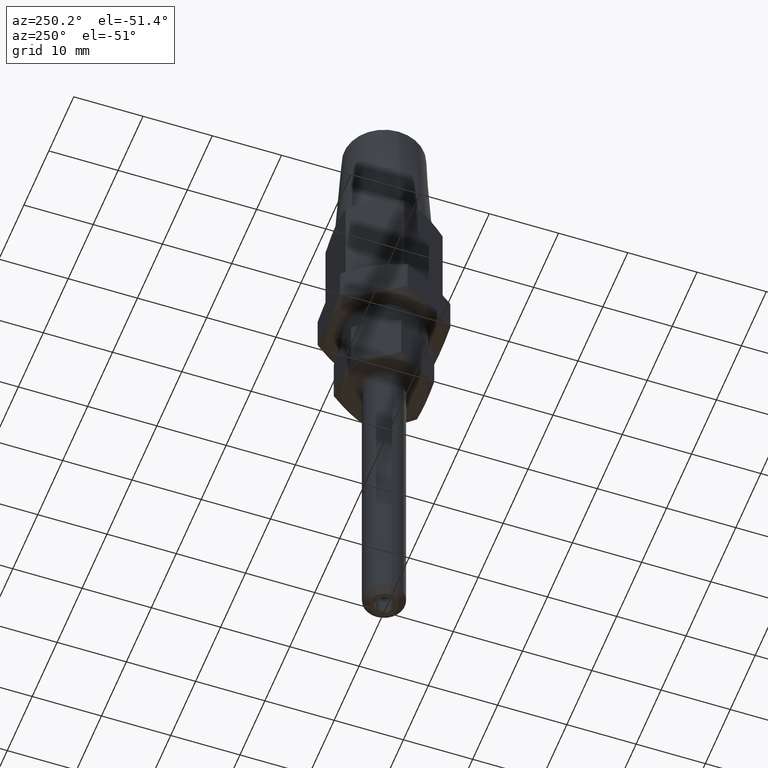
[diagram: clean part render]
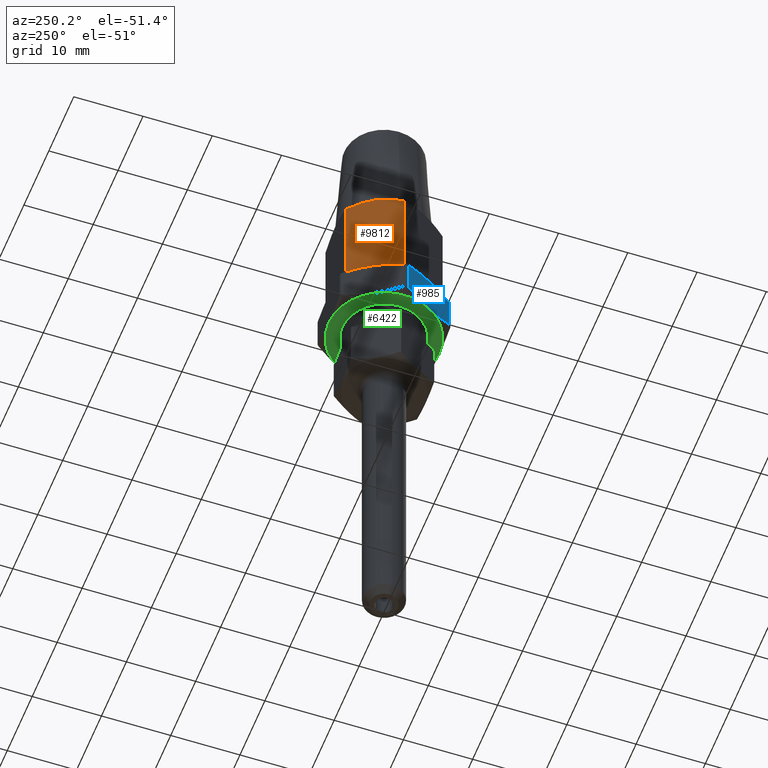
[diagram: same view with three faces highlighted in distinct colors, each labeled with its STEP entity id]
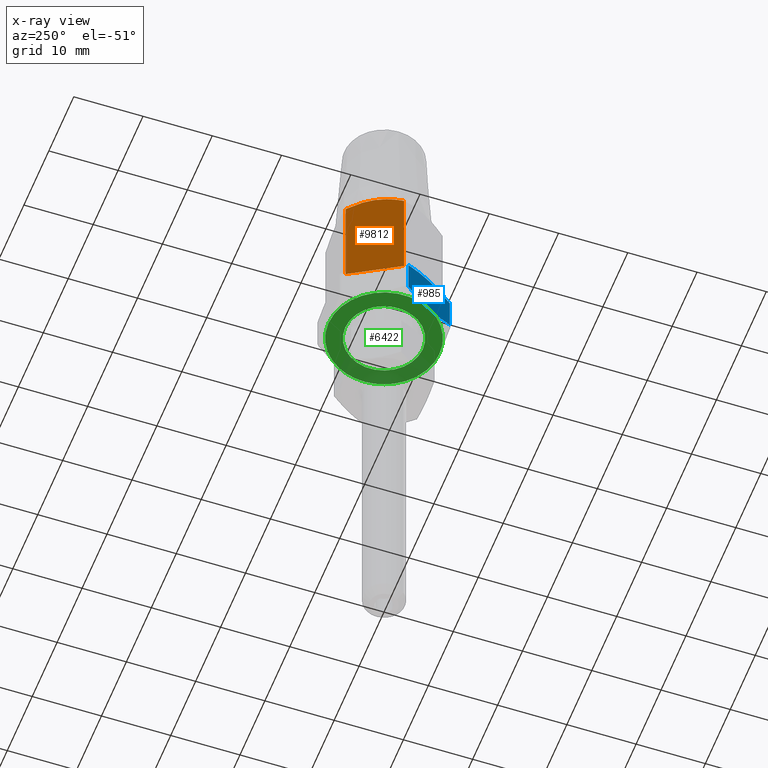
[diagram: x-ray of the same camera — body ghosted, the three highlighted faces saturated]
A machine part, auxiliary view with three faces highlighted in distinct colors.
The next image is the same camera in x-ray (body ghosted, the three faces saturated) — at least one of them is partly hidden behind the body in this view.
Their STEP definitions:

[orange] entity #9812 — the highlighted planar face has unit normal (0.866, -0.5, 0).
#269 = LINE ( 'NONE', #10465, #5204 ) ;
#563 = CARTESIAN_POINT ( 'NONE',  ( -4.357220654578270600, 6.453072446481927600, 14.48286500159613700 ) ) ;
#621 = EDGE_LOOP ( 'NONE', ( #12077, #9252, #6656, #3625 ) ) ;
#1512 = LINE ( 'NONE', #13819, #10100 ) ;
#1807 = PLANE ( 'NONE',  #12595 ) ;
#2319 = VERTEX_POINT ( 'NONE', #6011 ) ;
#3625 = ORIENTED_EDGE ( 'NONE', *, *, #11489, .F. ) ;
#4703 = CARTESIAN_POINT ( 'NONE',  ( -7.438231708962885800, 1.116604761606411200, 14.75707473685712200 ) ) ;
#4764 = CARTESIAN_POINT ( 'NONE',  ( -5.699381388933853800, 4.128381862654099300, 15.22088044662089800 ) ) ;
#5204 = VECTOR ( 'NONE', #13114, 1000.000000000000100 ) ;
#5542 = VERTEX_POINT ( 'NONE', #12862 ) ;
#6011 = CARTESIAN_POINT ( 'NONE',  ( -8.082903768654762900, 1.537748083177683700E-016, 14.16709623134525100 ) ) ;
#6656 = ORIENTED_EDGE ( 'NONE', *, *, #16388, .T. ) ;
#7008 = DIRECTION ( 'NONE',  ( -0.0000000000000000000, -0.0000000000000000000, -1.000000000000000000 ) ) ;
#7254 = CARTESIAN_POINT ( 'NONE',  ( -5.351911424995836200, 4.730217494298867300, 15.11557990305788800 ) ) ;
#7938 = CARTESIAN_POINT ( 'NONE',  ( -8.082903768654762900, 6.998943670725841100E-018, 0.0000000000000000000 ) ) ;
#8629 = DIRECTION ( 'NONE',  ( 0.8660254037844387100, -0.4999999999999999400, 0.0000000000000000000 ) ) ;
#8718 = FACE_OUTER_BOUND ( 'NONE', #621, .T. ) ;
#8821 = CARTESIAN_POINT ( 'NONE',  ( -4.041451884327385000, 6.999999999999999100, 14.16709623134525100 ) ) ;
#9167 = LINE ( 'NONE', #17466, #16003 ) ;
#9252 = ORIENTED_EDGE ( 'NONE', *, *, #9663, .T. ) ;
#9524 = EDGE_CURVE ( 'NONE', #5542, #2319, #10781, .T. ) ;
#9663 = EDGE_CURVE ( 'NONE', #5542, #11864, #9167, .T. ) ;
#9812 = ADVANCED_FACE ( 'NONE', ( #8718 ), #1807, .F. ) ;
#9961 = CARTESIAN_POINT ( 'NONE',  ( -6.407546963995874200, 2.901803106475448100, 15.25148396273105800 ) ) ;
#10100 = VECTOR ( 'NONE', #7008, 1000.000000000000000 ) ;
#10140 = CARTESIAN_POINT ( 'NONE',  ( -4.680111991988589200, 5.893808244763385500, 14.75134614935850900 ) ) ;
#10465 = CARTESIAN_POINT ( 'NONE',  ( -4.041451884327385000, 6.999999999999999100, 0.0000000000000000000 ) ) ;
#10781 = B_SPLINE_CURVE_WITH_KNOTS ( 'NONE', 3,
 ( #8821, #563, #10140, #11528, #7254, #4764, #12923, #9961, #16822, #4703, #17003, #12796 ),
 .UNSPECIFIED., .F., .F.,
 ( 4, 2, 2, 2, 2, 4 ),
 ( 2.544316211734210900E-007, 0.002087583538114676100, 0.003131248091361426800, 0.004174912644608177000, 0.006262241751101677400, 0.008349570857595176000 ),
 .UNSPECIFIED. ) ;
#11489 = EDGE_CURVE ( 'NONE', #2319, #14785, #1512, .T. ) ;
#11528 = CARTESIAN_POINT ( 'NONE',  ( -5.181773201775139400, 5.024905541226609700, 15.03905029590963900 ) ) ;
#11864 = VERTEX_POINT ( 'NONE', #14271 ) ;
#12077 = ORIENTED_EDGE ( 'NONE', *, *, #9524, .F. ) ;
#12490 = DIRECTION ( 'NONE',  ( -0.0000000000000000000, -0.0000000000000000000, -1.000000000000000000 ) ) ;
#12595 = AXIS2_PLACEMENT_3D ( 'NONE', #15558, #8629, #12787 ) ;
#12787 = DIRECTION ( 'NONE',  ( 0.4999999999999999400, 0.8660254037844387100, 0.0000000000000000000 ) ) ;
#12796 = CARTESIAN_POINT ( 'NONE',  ( -8.082903768654762900, 1.537748083177683700E-016, 14.16709623134525100 ) ) ;
#12862 = CARTESIAN_POINT ( 'NONE',  ( -4.041451884327385000, 6.999999999999999100, 14.16709623134525100 ) ) ;
#12923 = CARTESIAN_POINT ( 'NONE',  ( -5.878334458841439200, 3.818426053403735300, 15.24923430079596200 ) ) ;
#13114 = DIRECTION ( 'NONE',  ( -0.4999999999999998900, -0.8660254037844387100, 0.0000000000000000000 ) ) ;
#13819 = CARTESIAN_POINT ( 'NONE',  ( -8.082903768654762900, 6.998943670725841100E-018, 15.50000000000000000 ) ) ;
#14271 = CARTESIAN_POINT ( 'NONE',  ( -4.041451884327385000, 6.999999999999999100, 0.0000000000000000000 ) ) ;
#14785 = VERTEX_POINT ( 'NONE', #7938 ) ;
#15558 = CARTESIAN_POINT ( 'NONE',  ( -4.041451884327385000, 6.999999999999999100, 15.50000000000000000 ) ) ;
#16003 = VECTOR ( 'NONE', #12490, 1000.000000000000000 ) ;
#16388 = EDGE_CURVE ( 'NONE', #11864, #14785, #269, .T. ) ;
#16822 = CARTESIAN_POINT ( 'NONE',  ( -6.754331197248241400, 2.301155195218526700, 15.14464026218349000 ) ) ;
#17003 = CARTESIAN_POINT ( 'NONE',  ( -7.765275520783808900, 0.5501482632315750600, 14.48472447921632700 ) ) ;
#17466 = CARTESIAN_POINT ( 'NONE',  ( -4.041451884327385000, 6.999999999999999100, 15.50000000000000000 ) ) ;

[blue] entity #985 — the highlighted planar face has unit normal (0.866, 0.5, 0).
#79 = CARTESIAN_POINT ( 'NONE',  ( -9.093266739736604300, 3.000000000000000000, -0.2500000000000019400 ) ) ;
#359 = AXIS2_PLACEMENT_3D ( 'NONE', #10997, #2796, #12370 ) ;
#438 = VERTEX_POINT ( 'NONE', #15255 ) ;
#981 = LINE ( 'NONE', #79, #9977 ) ;
#985 = ADVANCED_FACE ( 'NONE', ( #5104 ), #9601, .F. ) ;
#1037 = CARTESIAN_POINT ( 'NONE',  ( -4.763139720814413300, 3.000000000000000000, -7.749999999999998200 ) ) ;
#1248 = EDGE_CURVE ( 'NONE', #10501, #3692, #10145, .T. ) ;
#1414 = CARTESIAN_POINT ( 'NONE',  ( -6.560346905327028500, 2.985208350672251800, -4.637145844696337200 ) ) ;
#1534 = CARTESIAN_POINT ( 'NONE',  ( -4.763139720813718700, -2.366818401320392300, -7.750000000001200800 ) ) ;
#1576 = ORIENTED_EDGE ( 'NONE', *, *, #2968, .T. ) ;
#2226 = EDGE_LOOP ( 'NONE', ( #11247, #4898, #10258, #11302, #5936, #1576 ) ) ;
#2575 = EDGE_CURVE ( 'NONE', #3692, #17617, #981, .T. ) ;
#2611 = CARTESIAN_POINT ( 'NONE',  ( -9.093266739737298800, 2.366818401320391900, -0.2499999999987993500 ) ) ;
#2702 = CARTESIAN_POINT ( 'NONE',  ( -5.116728026455192000, 2.561168110950621000, -7.137567089667976800 ) ) ;
#2796 = DIRECTION ( 'NONE',  ( 0.8660254037844387100, -0.0000000000000000000, 0.5000000000000001100 ) ) ;
#2874 = CARTESIAN_POINT ( 'NONE',  ( -5.117570874825708500, -2.561631382313039200, -7.136107233467162900 ) ) ;
#2968 = EDGE_CURVE ( 'NONE', #438, #10501, #8912, .T. ) ;
#3152 = CARTESIAN_POINT ( 'NONE',  ( -6.928203230275509700, -3.000000000000000900, -4.000000000000000000 ) ) ;
#3371 = VECTOR ( 'NONE', #9306, 1000.000000000000000 ) ;
#3591 = EDGE_CURVE ( 'NONE', #17617, #16865, #14743, .T. ) ;
#3692 = VERTEX_POINT ( 'NONE', #13994 ) ;
#4263 = CARTESIAN_POINT ( 'NONE',  ( -6.928203230275509700, 3.000000000000000900, -4.000000000000000000 ) ) ;
#4266 = CARTESIAN_POINT ( 'NONE',  ( -6.744709577508775300, 3.000000000000006200, -4.317820329458386100 ) ) ;
#4426 = CARTESIAN_POINT ( 'NONE',  ( -6.928203230275509700, -3.000000000000000900, -4.000000000000000000 ) ) ;
#4898 = ORIENTED_EDGE ( 'NONE', *, *, #2575, .T. ) ;
#5104 = FACE_OUTER_BOUND ( 'NONE', #2226, .T. ) ;
#5451 = CARTESIAN_POINT ( 'NONE',  ( -6.014103901768241800, 2.885186752460023200, -5.583266480139180000 ) ) ;
#5668 = CARTESIAN_POINT ( 'NONE',  ( -5.474555511747933400, -2.720893097496192700, -6.517791704796345600 ) ) ;
#5682 = DIRECTION ( 'NONE',  ( -0.0000000000000000000, 1.000000000000000000, -0.0000000000000000000 ) ) ;
#5735 = EDGE_CURVE ( 'NONE', #11120, #438, #6962, .T. ) ;
#5936 = ORIENTED_EDGE ( 'NONE', *, *, #5735, .T. ) ;
#6922 = CARTESIAN_POINT ( 'NONE',  ( -4.763139720814414200, 2.366818401320774300, -7.749999999999996400 ) ) ;
#6962 = LINE ( 'NONE', #1037, #3371 ) ;
#6968 = CARTESIAN_POINT ( 'NONE',  ( -6.559779561332480700, -3.000000000000006200, -4.638128513320261900 ) ) ;
#7982 = CARTESIAN_POINT ( 'NONE',  ( -7.660987509252689300, -2.927775518044769800, -2.730780397823792800 ) ) ;
#8086 = CARTESIAN_POINT ( 'NONE',  ( -7.660768647960194000, 2.940384295252646200, -2.731159476702206500 ) ) ;
#8190 = CARTESIAN_POINT ( 'NONE',  ( -6.195418951298327300, 2.927775518044770200, -5.269219602176205400 ) ) ;
#8626 = B_SPLINE_CURVE_WITH_KNOTS ( 'NONE', 3,
 ( #15138, #4266, #1414, #8190, #5451, #9695, #2702, #6922 ),
 .UNSPECIFIED., .F., .F.,
 ( 4, 2, 2, 4 ),
 ( 0.004673709593152152200, 0.005763484876759233900, 0.006853260160366316500, 0.009032810727580479000 ),
 .UNSPECIFIED. ) ;
#8912 = B_SPLINE_CURVE_WITH_KNOTS ( 'NONE', 3,
 ( #1534, #2874, #5668, #9689, #6968, #4426 ),
 .UNSPECIFIED., .F., .F.,
 ( 4, 2, 4 ),
 ( 0.0002975472326987025900, 0.002485628412925428400, 0.004673709593152154000 ),
 .UNSPECIFIED. ) ;
#9269 = CARTESIAN_POINT ( 'NONE',  ( -7.842302558782777500, -2.885186752460022800, -2.416733519860816900 ) ) ;
#9306 = DIRECTION ( 'NONE',  ( 0.0000000000000000000, -1.000000000000000000, 0.0000000000000000000 ) ) ;
#9601 = PLANE ( 'NONE',  #359 ) ;
#9689 = CARTESIAN_POINT ( 'NONE',  ( -6.195637812590822700, -2.940384295252646200, -5.268840523297790800 ) ) ;
#9695 = CARTESIAN_POINT ( 'NONE',  ( -5.473227440624929100, 2.720368592424070800, -6.520091991457449300 ) ) ;
#9977 = VECTOR ( 'NONE', #5682, 1000.000000000000000 ) ;
#10145 = B_SPLINE_CURVE_WITH_KNOTS ( 'NONE', 3,
 ( #3152, #13643, #14832, #7982, #9269, #16308, #17664, #16079 ),
 .UNSPECIFIED., .F., .F.,
 ( 4, 2, 2, 4 ),
 ( 0.004673709593152154000, 0.005763484876759235700, 0.006853260160366318200, 0.009032810727580484200 ),
 .UNSPECIFIED. ) ;
#10155 = CARTESIAN_POINT ( 'NONE',  ( -6.928203230275509700, -3.000000000000000900, -4.000000000000000000 ) ) ;
#10258 = ORIENTED_EDGE ( 'NONE', *, *, #3591, .T. ) ;
#10501 = VERTEX_POINT ( 'NONE', #10155 ) ;
#10997 = CARTESIAN_POINT ( 'NONE',  ( -4.618802153517006700, 3.000000000000000000, -7.999999999999998200 ) ) ;
#11120 = VERTEX_POINT ( 'NONE', #16666 ) ;
#11247 = ORIENTED_EDGE ( 'NONE', *, *, #1248, .T. ) ;
#11302 = ORIENTED_EDGE ( 'NONE', *, *, #14420, .T. ) ;
#12256 = CARTESIAN_POINT ( 'NONE',  ( -6.928203230275509700, 3.000000000000000900, -4.000000000000000000 ) ) ;
#12370 = DIRECTION ( 'NONE',  ( 0.5000000000000000000, 0.0000000000000000000, -0.8660254037844386000 ) ) ;
#13643 = CARTESIAN_POINT ( 'NONE',  ( -7.111696883042241300, -3.000000000000006700, -3.682179670541614800 ) ) ;
#13994 = CARTESIAN_POINT ( 'NONE',  ( -9.093266739736604300, -2.366818401320773800, -0.2500000000000016700 ) ) ;
#14420 = EDGE_CURVE ( 'NONE', #16865, #11120, #8626, .T. ) ;
#14743 = B_SPLINE_CURVE_WITH_KNOTS ( 'NONE', 3,
 ( #2611, #14920, #16299, #8086, #17654, #12256 ),
 .UNSPECIFIED., .F., .F.,
 ( 4, 2, 4 ),
 ( 0.0002975472326987016200, 0.002485628412925426600, 0.004673709593152152200 ),
 .UNSPECIFIED. ) ;
#14832 = CARTESIAN_POINT ( 'NONE',  ( -7.296059555223990000, -2.985208350672253100, -3.362854155303661500 ) ) ;
#14920 = CARTESIAN_POINT ( 'NONE',  ( -8.738835585725309900, 2.561631382313039200, -0.8638927665328345300 ) ) ;
#15138 = CARTESIAN_POINT ( 'NONE',  ( -6.928203230275509700, 3.000000000000000900, -4.000000000000000000 ) ) ;
#15255 = CARTESIAN_POINT ( 'NONE',  ( -4.763139720813718700, -2.366818401320392300, -7.750000000001200800 ) ) ;
#16079 = CARTESIAN_POINT ( 'NONE',  ( -9.093266739736604300, -2.366818401320773800, -0.2500000000000016700 ) ) ;
#16299 = CARTESIAN_POINT ( 'NONE',  ( -8.381850948803085900, 2.720893097496192700, -1.482208295203656600 ) ) ;
#16308 = CARTESIAN_POINT ( 'NONE',  ( -8.383179019926089400, -2.720368592424071300, -1.479908008542546900 ) ) ;
#16666 = CARTESIAN_POINT ( 'NONE',  ( -4.763139720814414200, 2.366818401320774300, -7.749999999999996400 ) ) ;
#16865 = VERTEX_POINT ( 'NONE', #4263 ) ;
#17483 = CARTESIAN_POINT ( 'NONE',  ( -9.093266739737298800, 2.366818401320391900, -0.2499999999987993500 ) ) ;
#17617 = VERTEX_POINT ( 'NONE', #17483 ) ;
#17654 = CARTESIAN_POINT ( 'NONE',  ( -7.296626899218537700, 3.000000000000006200, -3.361871486679738100 ) ) ;
#17664 = CARTESIAN_POINT ( 'NONE',  ( -8.739678434095829100, -2.561168110950620600, -0.8624329103320191900 ) ) ;

[green] entity #6422 — the highlighted planar face has unit normal (0, 0, -1).
#19 = EDGE_LOOP ( 'NONE', ( #16884, #14258, #1866, #6600, #7798, #5519, #380 ) ) ;
#311 = CARTESIAN_POINT ( 'NONE',  ( 0.0000000000000000000, 3.000000000000000000, 0.0000000000000000000 ) ) ;
#380 = ORIENTED_EDGE ( 'NONE', *, *, #15108, .F. ) ;
#496 = AXIS2_PLACEMENT_3D ( 'NONE', #4830, #11785, #15996 ) ;
#1036 = VERTEX_POINT ( 'NONE', #15969 ) ;
#1172 = EDGE_CURVE ( 'NONE', #8754, #1427, #4877, .T. ) ;
#1351 = EDGE_LOOP ( 'NONE', ( #13178, #4065 ) ) ;
#1427 = VERTEX_POINT ( 'NONE', #9711 ) ;
#1597 = DIRECTION ( 'NONE',  ( 0.0000000000000000000, 0.0000000000000000000, 1.000000000000000000 ) ) ;
#1866 = ORIENTED_EDGE ( 'NONE', *, *, #1172, .F. ) ;
#2234 = AXIS2_PLACEMENT_3D ( 'NONE', #12991, #6019, #15768 ) ;
#2286 = DIRECTION ( 'NONE',  ( 0.0000000000000000000, 0.0000000000000000000, 1.000000000000000000 ) ) ;
#2951 = DIRECTION ( 'NONE',  ( -1.776356839400250500E-015, 0.0000000000000000000, 1.000000000000000000 ) ) ;
#3253 = CIRCLE ( 'NONE', #7714, 5.600000000000000500 ) ;
#3788 = CARTESIAN_POINT ( 'NONE',  ( 7.999999999999998200, 3.000000000000000000, 1.925929944387235900E-031 ) ) ;
#4065 = ORIENTED_EDGE ( 'NONE', *, *, #6559, .T. ) ;
#4263 = CARTESIAN_POINT ( 'NONE',  ( -6.928203230275509700, 3.000000000000000900, -4.000000000000000000 ) ) ;
#4326 = CIRCLE ( 'NONE', #13264, 5.600000000000000500 ) ;
#4337 = DIRECTION ( 'NONE',  ( -0.0000000000000000000, -1.000000000000000000, -0.0000000000000000000 ) ) ;
#4351 = CARTESIAN_POINT ( 'NONE',  ( 1.671755730681948600E-016, 3.000000000000000000, 7.721508969028293100E-016 ) ) ;
#4830 = CARTESIAN_POINT ( 'NONE',  ( 1.671755730681948600E-016, 3.000000000000000000, 7.721508969028293100E-016 ) ) ;
#4877 = CIRCLE ( 'NONE', #10475, 7.999999999999998200 ) ;
#4991 = AXIS2_PLACEMENT_3D ( 'NONE', #9696, #10974, #13673 ) ;
#5006 = CARTESIAN_POINT ( 'NONE',  ( 0.0000000000000000000, 3.000000000000000000, 5.600000000000000500 ) ) ;
#5185 = EDGE_CURVE ( 'NONE', #16865, #7039, #7396, .T. ) ;
#5519 = ORIENTED_EDGE ( 'NONE', *, *, #5185, .F. ) ;
#5633 = DIRECTION ( 'NONE',  ( -0.0000000000000000000, -1.000000000000000000, -0.0000000000000000000 ) ) ;
#5943 = VERTEX_POINT ( 'NONE', #16515 ) ;
#6019 = DIRECTION ( 'NONE',  ( -0.0000000000000000000, -1.000000000000000000, -0.0000000000000000000 ) ) ;
#6322 = EDGE_CURVE ( 'NONE', #9591, #5943, #4326, .T. ) ;
#6371 = CARTESIAN_POINT ( 'NONE',  ( -1.335139025668964900E-015, 3.000000000000000400, -8.000000000000000000 ) ) ;
#6422 = ADVANCED_FACE ( 'NONE', ( #15640, #16297 ), #13567, .T. ) ;
#6559 = EDGE_CURVE ( 'NONE', #5943, #9591, #3253, .T. ) ;
#6600 = ORIENTED_EDGE ( 'NONE', *, *, #7345, .F. ) ;
#7039 = VERTEX_POINT ( 'NONE', #6371 ) ;
#7153 = AXIS2_PLACEMENT_3D ( 'NONE', #14637, #7820, #9170 ) ;
#7205 = EDGE_CURVE ( 'NONE', #7039, #16405, #7704, .T. ) ;
#7345 = EDGE_CURVE ( 'NONE', #16405, #8754, #15854, .T. ) ;
#7396 = CIRCLE ( 'NONE', #2234, 7.999999999999998200 ) ;
#7603 = AXIS2_PLACEMENT_3D ( 'NONE', #9830, #4337, #15450 ) ;
#7704 = CIRCLE ( 'NONE', #7603, 7.999999999999998200 ) ;
#7714 = AXIS2_PLACEMENT_3D ( 'NONE', #311, #11272, #1597 ) ;
#7798 = ORIENTED_EDGE ( 'NONE', *, *, #7205, .F. ) ;
#7820 = DIRECTION ( 'NONE',  ( -0.0000000000000000000, -1.000000000000000000, -0.0000000000000000000 ) ) ;
#8743 = EDGE_CURVE ( 'NONE', #1036, #11770, #16248, .T. ) ;
#8754 = VERTEX_POINT ( 'NONE', #3788 ) ;
#9002 = DIRECTION ( 'NONE',  ( -0.0000000000000000000, -1.000000000000000000, -0.0000000000000000000 ) ) ;
#9037 = DIRECTION ( 'NONE',  ( -5.572519102273161200E-017, -1.000000000000000000, -0.0000000000000000000 ) ) ;
#9170 = DIRECTION ( 'NONE',  ( 0.0000000000000000000, 0.0000000000000000000, 1.000000000000000000 ) ) ;
#9552 = DIRECTION ( 'NONE',  ( 4.440892098500626200E-015, 0.0000000000000000000, 1.000000000000000000 ) ) ;
#9591 = VERTEX_POINT ( 'NONE', #5006 ) ;
#9696 = CARTESIAN_POINT ( 'NONE',  ( 0.0000000000000000000, 3.000000000000000000, 0.0000000000000000000 ) ) ;
#9711 = CARTESIAN_POINT ( 'NONE',  ( 6.928203230275510500, 3.000000000000000000, 3.999999999999999100 ) ) ;
#9830 = CARTESIAN_POINT ( 'NONE',  ( 1.671755730681948600E-016, 3.000000000000000000, 7.721508969028293100E-016 ) ) ;
#10475 = AXIS2_PLACEMENT_3D ( 'NONE', #4351, #16362, #9552 ) ;
#10764 = CIRCLE ( 'NONE', #496, 7.999999999999998200 ) ;
#10974 = DIRECTION ( 'NONE',  ( 0.0000000000000000000, 1.000000000000000000, 0.0000000000000000000 ) ) ;
#11272 = DIRECTION ( 'NONE',  ( -0.0000000000000000000, -1.000000000000000000, -0.0000000000000000000 ) ) ;
#11770 = VERTEX_POINT ( 'NONE', #15030 ) ;
#11785 = DIRECTION ( 'NONE',  ( -0.0000000000000000000, -1.000000000000000000, -0.0000000000000000000 ) ) ;
#12542 = AXIS2_PLACEMENT_3D ( 'NONE', #17161, #9037, #13074 ) ;
#12710 = CIRCLE ( 'NONE', #12542, 8.000000000000000000 ) ;
#12991 = CARTESIAN_POINT ( 'NONE',  ( 1.671755730681948600E-016, 3.000000000000000000, 7.721508969028293100E-016 ) ) ;
#13074 = DIRECTION ( 'NONE',  ( 1.000000000000000000, -5.421010862427522200E-017, 0.0000000000000000000 ) ) ;
#13178 = ORIENTED_EDGE ( 'NONE', *, *, #6322, .T. ) ;
#13264 = AXIS2_PLACEMENT_3D ( 'NONE', #15863, #9002, #2286 ) ;
#13567 = PLANE ( 'NONE',  #4991 ) ;
#13673 = DIRECTION ( 'NONE',  ( 0.0000000000000000000, -0.0000000000000000000, 1.000000000000000000 ) ) ;
#13858 = CARTESIAN_POINT ( 'NONE',  ( 1.671755730681948600E-016, 3.000000000000000000, 7.721508969028293100E-016 ) ) ;
#14258 = ORIENTED_EDGE ( 'NONE', *, *, #14685, .F. ) ;
#14637 = CARTESIAN_POINT ( 'NONE',  ( 1.671755730681948600E-016, 3.000000000000000000, 7.721508969028293100E-016 ) ) ;
#14685 = EDGE_CURVE ( 'NONE', #1427, #1036, #12710, .T. ) ;
#15030 = CARTESIAN_POINT ( 'NONE',  ( -6.928203230275508800, 3.000000000000000900, 4.000000000000000000 ) ) ;
#15108 = EDGE_CURVE ( 'NONE', #11770, #16865, #10764, .T. ) ;
#15450 = DIRECTION ( 'NONE',  ( 0.0000000000000000000, 0.0000000000000000000, 1.000000000000000000 ) ) ;
#15640 = FACE_BOUND ( 'NONE', #1351, .T. ) ;
#15768 = DIRECTION ( 'NONE',  ( 1.776356839400250500E-015, 0.0000000000000000000, 1.000000000000000000 ) ) ;
#15854 = CIRCLE ( 'NONE', #15876, 7.999999999999998200 ) ;
#15863 = CARTESIAN_POINT ( 'NONE',  ( 0.0000000000000000000, 3.000000000000000000, 0.0000000000000000000 ) ) ;
#15876 = AXIS2_PLACEMENT_3D ( 'NONE', #13858, #5633, #2951 ) ;
#15969 = CARTESIAN_POINT ( 'NONE',  ( 1.671755730681948900E-016, 3.000000000000000400, 8.000000000000000000 ) ) ;
#15996 = DIRECTION ( 'NONE',  ( 0.0000000000000000000, 0.0000000000000000000, 1.000000000000000000 ) ) ;
#16248 = CIRCLE ( 'NONE', #7153, 7.999999999999998200 ) ;
#16278 = CARTESIAN_POINT ( 'NONE',  ( 6.928203230275509700, 3.000000000000000000, -4.000000000000000900 ) ) ;
#16297 = FACE_OUTER_BOUND ( 'NONE', #19, .T. ) ;
#16362 = DIRECTION ( 'NONE',  ( -0.0000000000000000000, -1.000000000000000000, -0.0000000000000000000 ) ) ;
#16405 = VERTEX_POINT ( 'NONE', #16278 ) ;
#16515 = CARTESIAN_POINT ( 'NONE',  ( 6.858022075225178600E-016, 3.000000000000000000, -5.600000000000000500 ) ) ;
#16865 = VERTEX_POINT ( 'NONE', #4263 ) ;
#16884 = ORIENTED_EDGE ( 'NONE', *, *, #8743, .F. ) ;
#17161 = CARTESIAN_POINT ( 'NONE',  ( 1.671755730681948600E-016, 3.000000000000000400, 0.0000000000000000000 ) ) ;